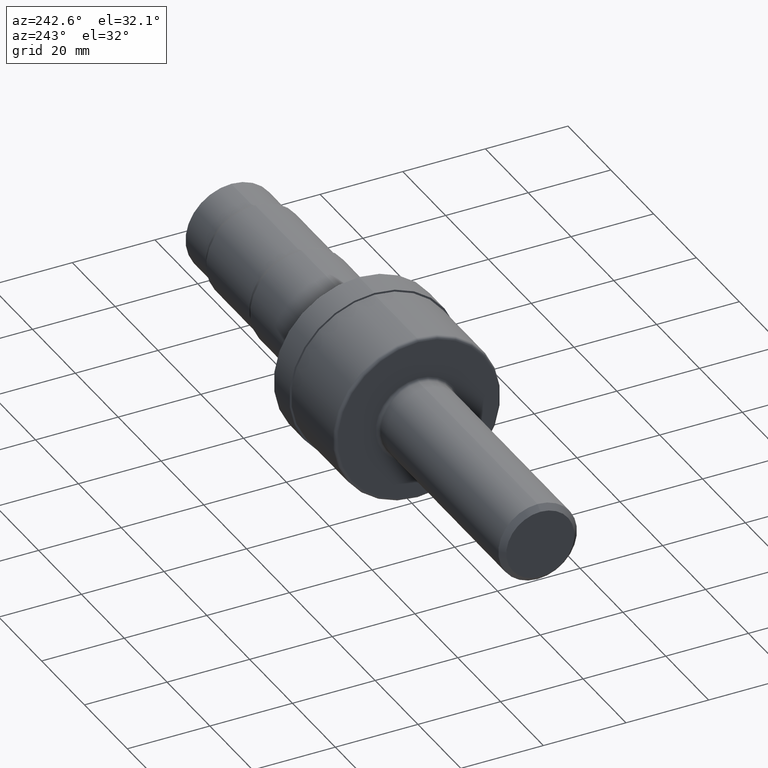
[diagram: clean part render]
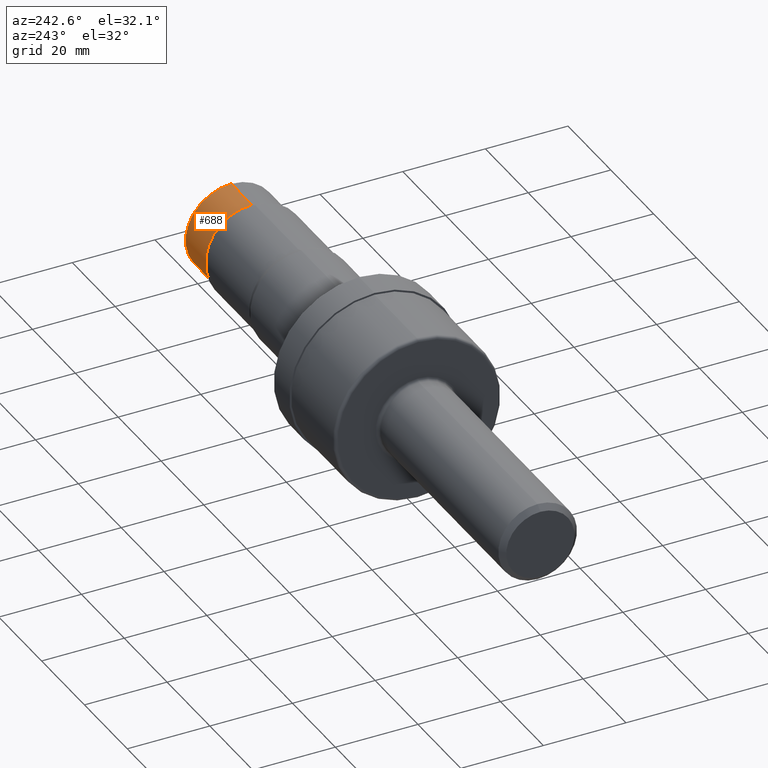
[diagram: same view with one face highlighted and labeled with its STEP entity id]
A machine part, auxiliary view. The second image highlights one B-rep face of the part: STEP entity #688.
In plain terms, the highlighted cylindrical surface (partial cylindrical patch) has radius 11.1227 mm, axis along (-1, -0, -0).
Its self-contained STEP definition (entity closure, byte-faithful):
#12 = VERTEX_POINT ( 'NONE', #132 ) ;
#72 = EDGE_CURVE ( 'NONE', #12, #241, #933, .T. ) ;
#132 = CARTESIAN_POINT ( 'NONE',  ( 5.679999999999999716, 0.0000000000000000000, 0.4379000000000000115 ) ) ;
#144 = DIRECTION ( 'NONE',  ( 0.0000000000000000000, 0.0000000000000000000, 1.000000000000000000 ) ) ;
#170 = VERTEX_POINT ( 'NONE', #636 ) ;
#189 = CARTESIAN_POINT ( 'NONE',  ( 0.0000000000000000000, 0.0000000000000000000, 0.4379000000000000115 ) ) ;
#231 = DIRECTION ( 'NONE',  ( 0.0000000000000000000, 0.0000000000000000000, 1.000000000000000000 ) ) ;
#241 = VERTEX_POINT ( 'NONE', #327 ) ;
#275 = DIRECTION ( 'NONE',  ( -1.000000000000000000, -0.0000000000000000000, -0.0000000000000000000 ) ) ;
#279 = EDGE_CURVE ( 'NONE', #170, #474, #527, .T. ) ;
#282 = ORIENTED_EDGE ( 'NONE', *, *, #334, .T. ) ;
#308 = DIRECTION ( 'NONE',  ( -1.000000000000000000, -0.0000000000000000000, -0.0000000000000000000 ) ) ;
#315 = CIRCLE ( 'NONE', #472, 0.4379000000000000115 ) ;
#316 = DIRECTION ( 'NONE',  ( -1.000000000000000000, -0.0000000000000000000, -0.0000000000000000000 ) ) ;
#327 = CARTESIAN_POINT ( 'NONE',  ( 5.303999999999998494, 0.0000000000000000000, 0.4379000000000000115 ) ) ;
#329 = CIRCLE ( 'NONE', #482, 0.4379000000000000115 ) ;
#334 = EDGE_CURVE ( 'NONE', #12, #170, #329, .T. ) ;
#349 = DIRECTION ( 'NONE',  ( 0.0000000000000000000, 0.0000000000000000000, 1.000000000000000000 ) ) ;
#364 = CARTESIAN_POINT ( 'NONE',  ( 5.679999999999999716, 0.0000000000000000000, 0.0000000000000000000 ) ) ;
#413 = DIRECTION ( 'NONE',  ( -1.000000000000000000, -0.0000000000000000000, -0.0000000000000000000 ) ) ;
#472 = AXIS2_PLACEMENT_3D ( 'NONE', #813, #308, #144 ) ;
#474 = VERTEX_POINT ( 'NONE', #496 ) ;
#482 = AXIS2_PLACEMENT_3D ( 'NONE', #364, #275, #231 ) ;
#496 = CARTESIAN_POINT ( 'NONE',  ( 5.303999999999998494, 5.362728333466259899E-17, -0.4379000000000000115 ) ) ;
#517 = ORIENTED_EDGE ( 'NONE', *, *, #72, .F. ) ;
#526 = EDGE_CURVE ( 'NONE', #241, #474, #315, .T. ) ;
#527 = LINE ( 'NONE', #869, #710 ) ;
#583 = ORIENTED_EDGE ( 'NONE', *, *, #279, .T. ) ;
#614 = FACE_OUTER_BOUND ( 'NONE', #893, .T. ) ;
#632 = ORIENTED_EDGE ( 'NONE', *, *, #526, .F. ) ;
#636 = CARTESIAN_POINT ( 'NONE',  ( 5.679999999999999716, 5.362728333466260515E-17, -0.4379000000000000115 ) ) ;
#688 = ADVANCED_FACE ( 'NONE', ( #614 ), #801, .T. ) ;
#689 = CARTESIAN_POINT ( 'NONE',  ( 0.0000000000000000000, 0.0000000000000000000, 0.0000000000000000000 ) ) ;
#697 = VECTOR ( 'NONE', #852, 39.37007874015748143 ) ;
#710 = VECTOR ( 'NONE', #316, 39.37007874015748143 ) ;
#801 = CYLINDRICAL_SURFACE ( 'NONE', #822, 0.4379000000000000115 ) ;
#813 = CARTESIAN_POINT ( 'NONE',  ( 5.303999999999998494, 0.0000000000000000000, 0.0000000000000000000 ) ) ;
#822 = AXIS2_PLACEMENT_3D ( 'NONE', #689, #413, #349 ) ;
#852 = DIRECTION ( 'NONE',  ( -1.000000000000000000, -0.0000000000000000000, -0.0000000000000000000 ) ) ;
#869 = CARTESIAN_POINT ( 'NONE',  ( 0.0000000000000000000, 5.362728333466259899E-17, -0.4379000000000000115 ) ) ;
#893 = EDGE_LOOP ( 'NONE', ( #282, #583, #632, #517 ) ) ;
#933 = LINE ( 'NONE', #189, #697 ) ;